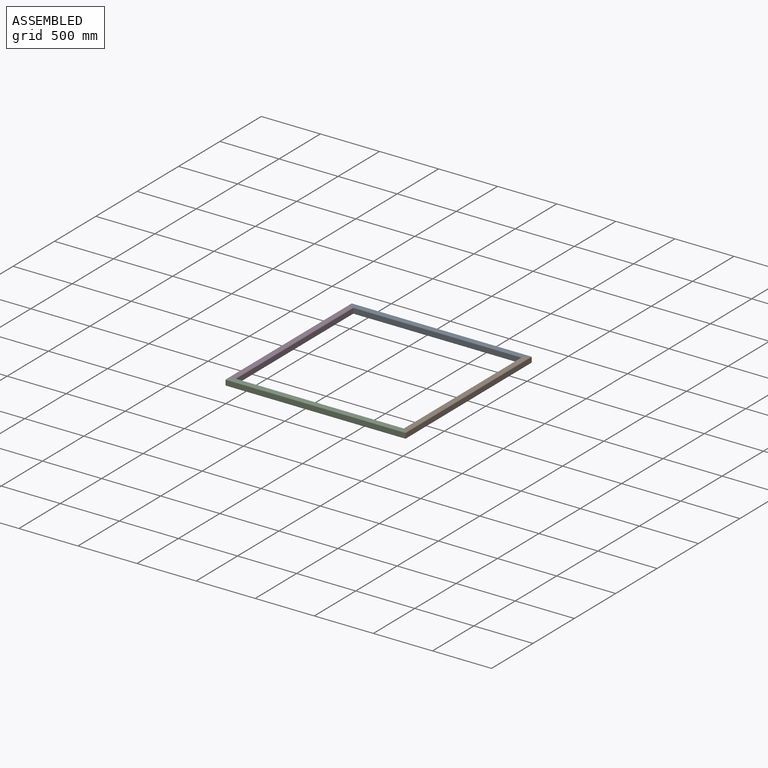
[diagram: assembled view]
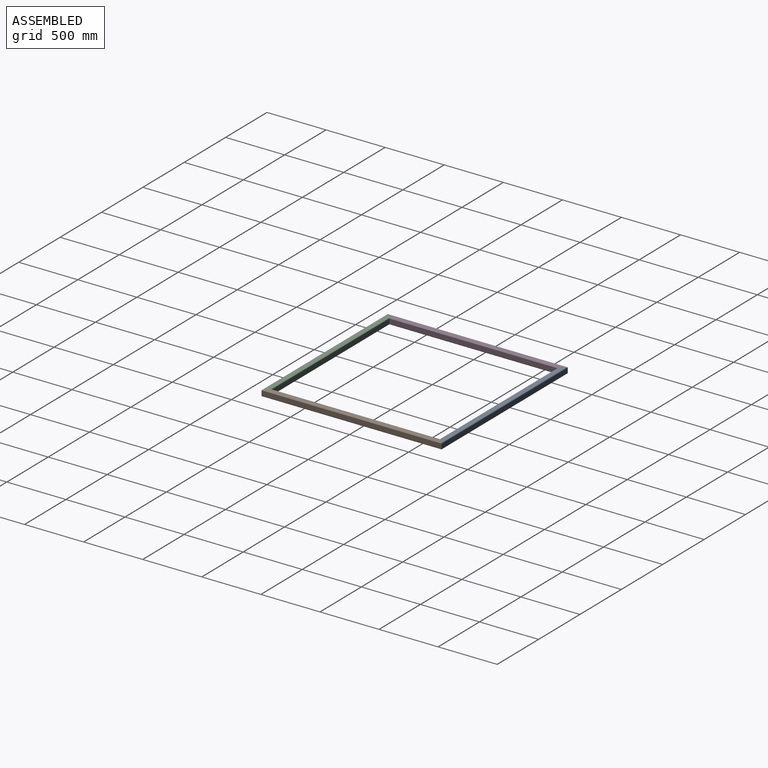
[diagram: assembled view, second angle]
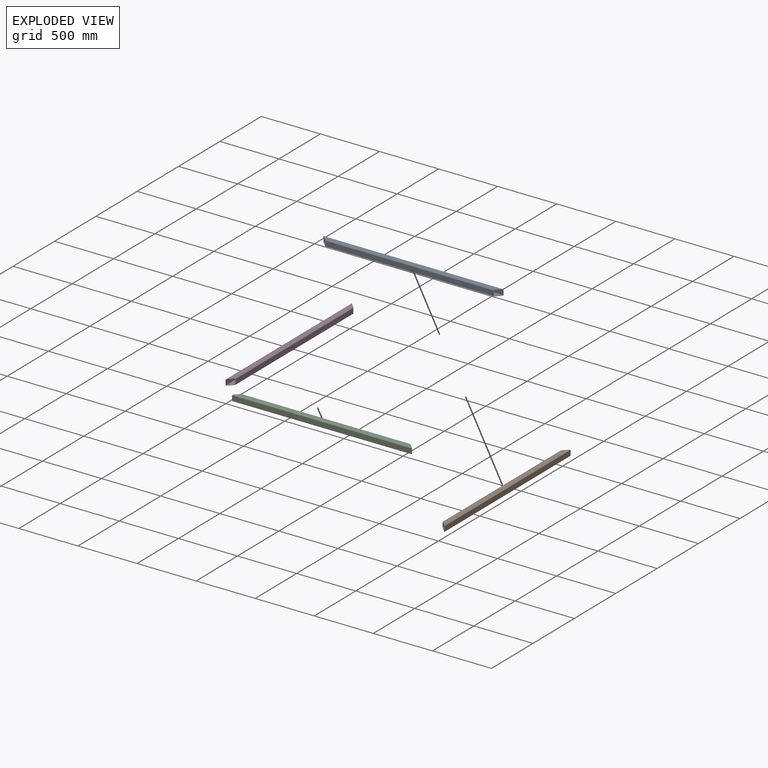
[diagram: exploded view]
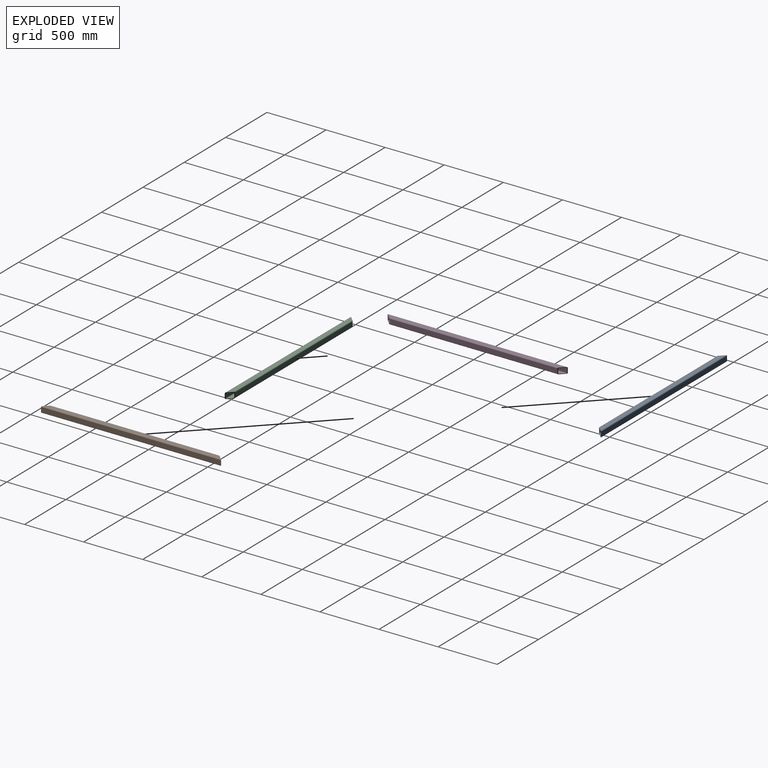
[diagram: exploded view, second angle]
ASSEMBLY  parts=4 mates=3
PART A: 18 faces, bbox 50.8x1524x50.8 mm
  f0: cylinder r=6.35mm len=1524mm, axis (0,-1,0), area 15155.2mm2, adj f6,f7,f8,f9
  f1: cylinder r=6.35mm len=1435.1mm, axis (0,-1,0), area 14233.8mm2, adj f5,f6,f8,f9
  f2: cylinder r=6.35mm len=1524mm, axis (0,-1,0), area 15155.2mm2, adj f3,f7,f8,f9
  f3: plane 1511.3x38.1mm, normal (0,0,-1), area 56128.9mm2, adj f2,f4,f8,f9
  f4: cylinder r=6.35mm len=1435.1mm, axis (0,-1,0), area 14233.8mm2, adj f3,f5,f8,f9
  f5: plane 1422.4x38.1mm, normal (-1,0,0), area 54193.4mm2, adj f1,f4,f8,f9
  f6: plane 1511.3x38.1mm, normal (0,0,1), area 56128.9mm2, adj f0,f1,f8,f9
  f7: plane 1524x38.1mm, normal (1,0,0), area 58064.4mm2, adj f0,f2,f8,f9
  f8: plane 50.8x50.8mm, normal (-0.71,0.71,0), area 787.6mm2, adj f0,f1,f2,f3,f4,f5,f6,f7
  f9: plane 50.8x50.8mm, normal (-0.71,-0.71,0), area 787.6mm2, adj f0,f1,f2,f3,f4,f5,f6,f7
  f10: cylinder r=3.3mm len=1517.9mm, axis (0,-1,0), area 7860.6mm2, adj f8,f9,f11,f17
  f11: plane 1511.3x38.1mm, normal (0,0,1), area 56128.9mm2, adj f8,f9,f10,f12
  f12: cylinder r=3.3mm len=1435.1mm, axis (0,-1,0), area 7421.7mm2, adj f8,f9,f11,f13
  f13: plane 1428.5x38.1mm, normal (1,0,0), area 54425.7mm2, adj f8,f9,f12,f14
  f14: cylinder r=3.3mm len=1435.1mm, axis (0,-1,0), area 7421.7mm2, adj f8,f9,f13,f15
  f15: plane 1511.3x38.1mm, normal (0,0,-1), area 56128.9mm2, adj f8,f9,f14,f16
  f16: cylinder r=3.3mm len=1517.9mm, axis (0,-1,0), area 7860.6mm2, adj f8,f9,f15,f17
  f17: plane 1517.9x38.1mm, normal (-1,0,0), area 57832.1mm2, adj f8,f9,f10,f16
PART B: same geometry as A
PART C: same geometry as A
PART D: same geometry as A
PLACE A rot(axis=(0,0,1),90deg) t=(894.85,1180.33,378.31)mm
PLACE B t=(869.45,-318.27,378.31)mm
PLACE C rot(axis=(0,0,-1),90deg) t=(-629.15,-292.87,378.31)mm
PLACE D rot(axis=(0,0,-1),180deg) t=(-603.75,1205.73,378.31)mm
MATE fastened B.f8 <-> A.f9  axis (-0.71,0.71,0) through (844.05,1154.93,378.31)mm
MATE fastened D.f8 <-> C.f9  axis (0.71,-0.71,0) through (-578.35,-267.47,378.31)mm
MATE fastened B.f9 <-> C.f8  axis (-0.71,-0.71,0) through (844.05,-267.47,378.31)mm
